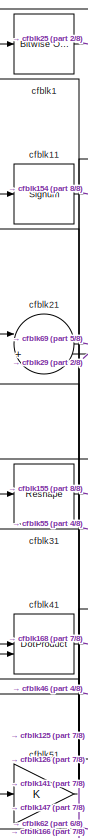
[diagram: root canvas - part 1/8, top left region]
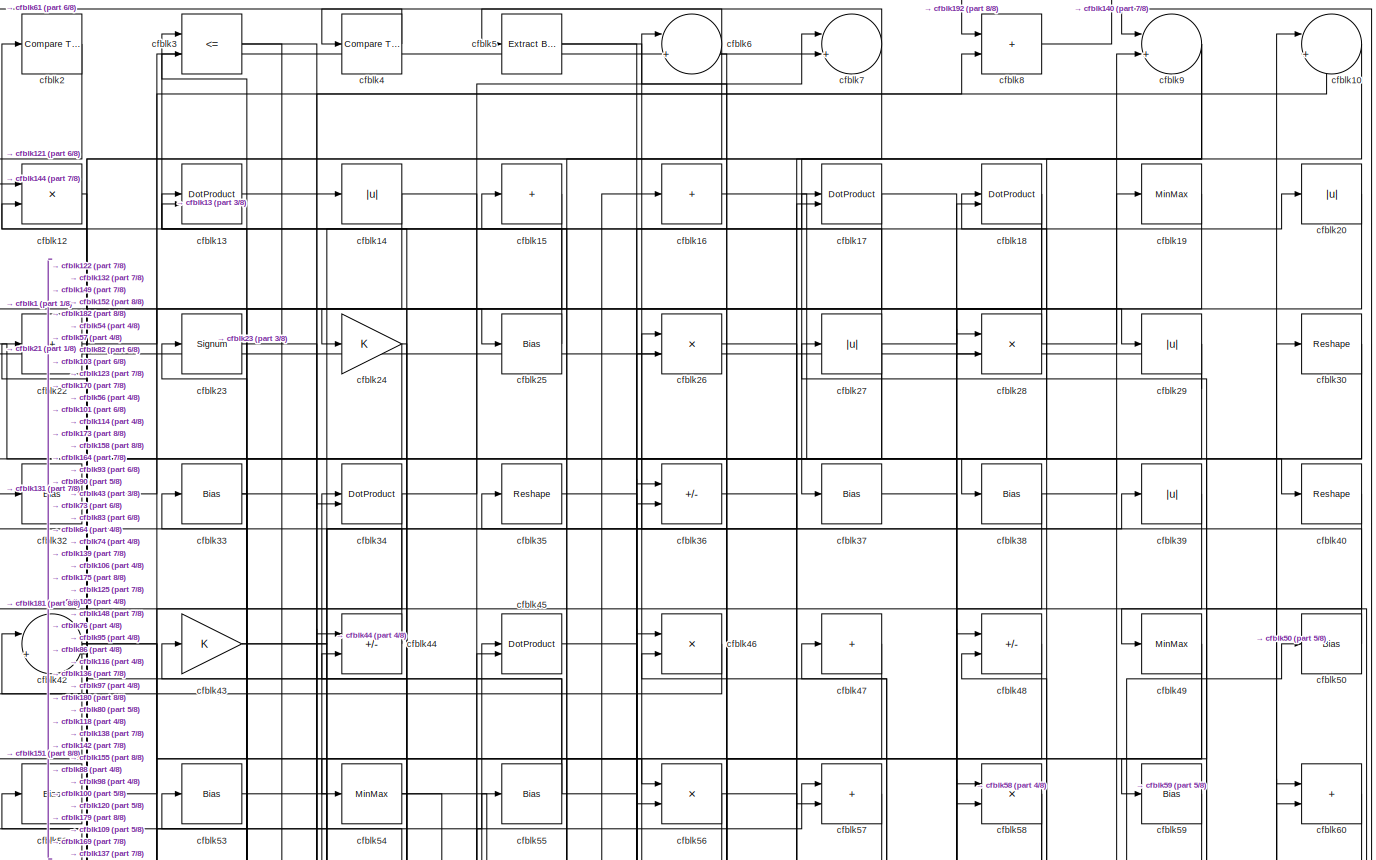
[diagram: root canvas - part 2/8, full width, top band]
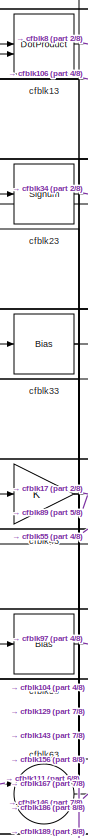
[diagram: root canvas - part 3/8, top left region]
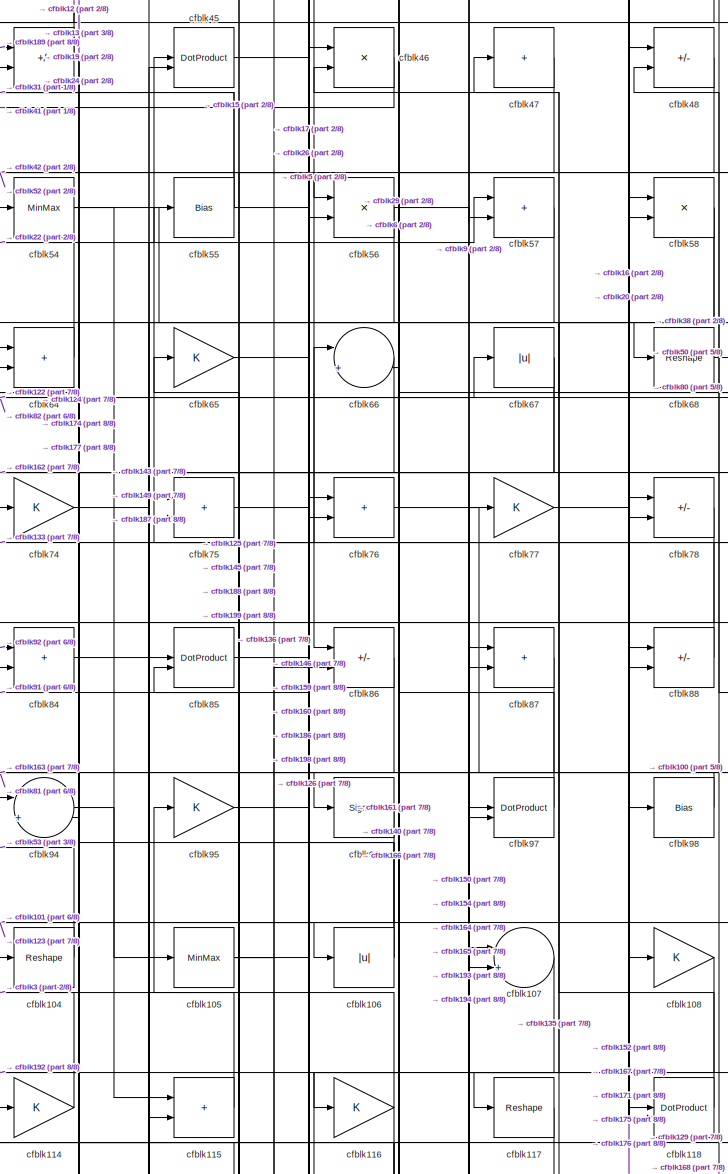
[diagram: root canvas - part 4/8, central region]
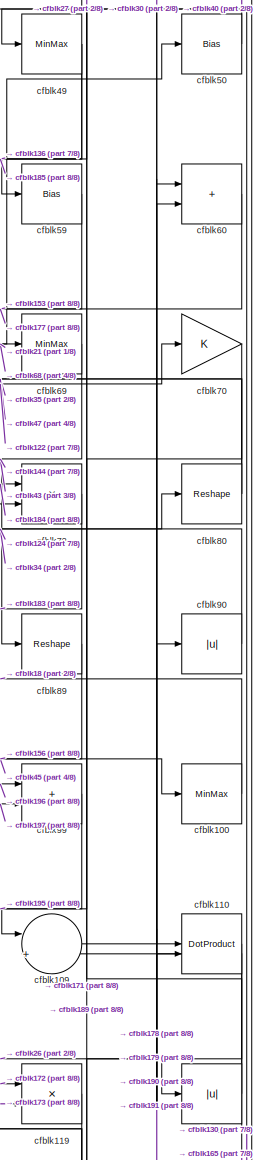
[diagram: root canvas - part 5/8, middle right region]
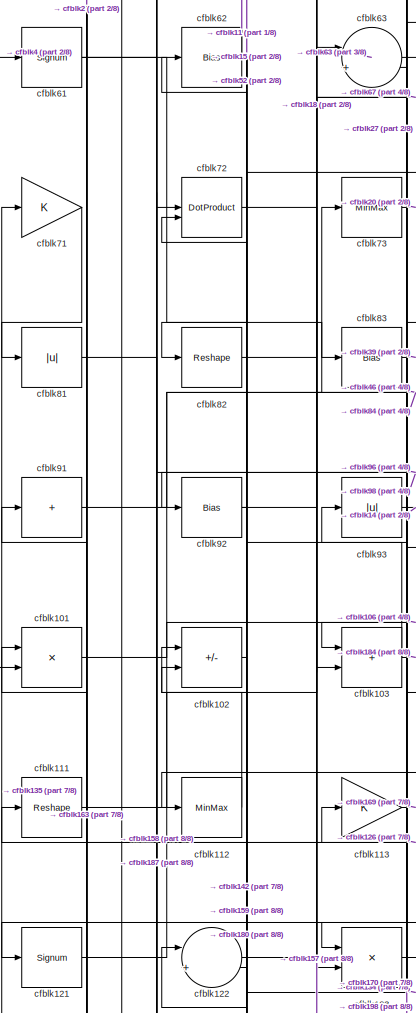
[diagram: root canvas - part 6/8, middle left region]
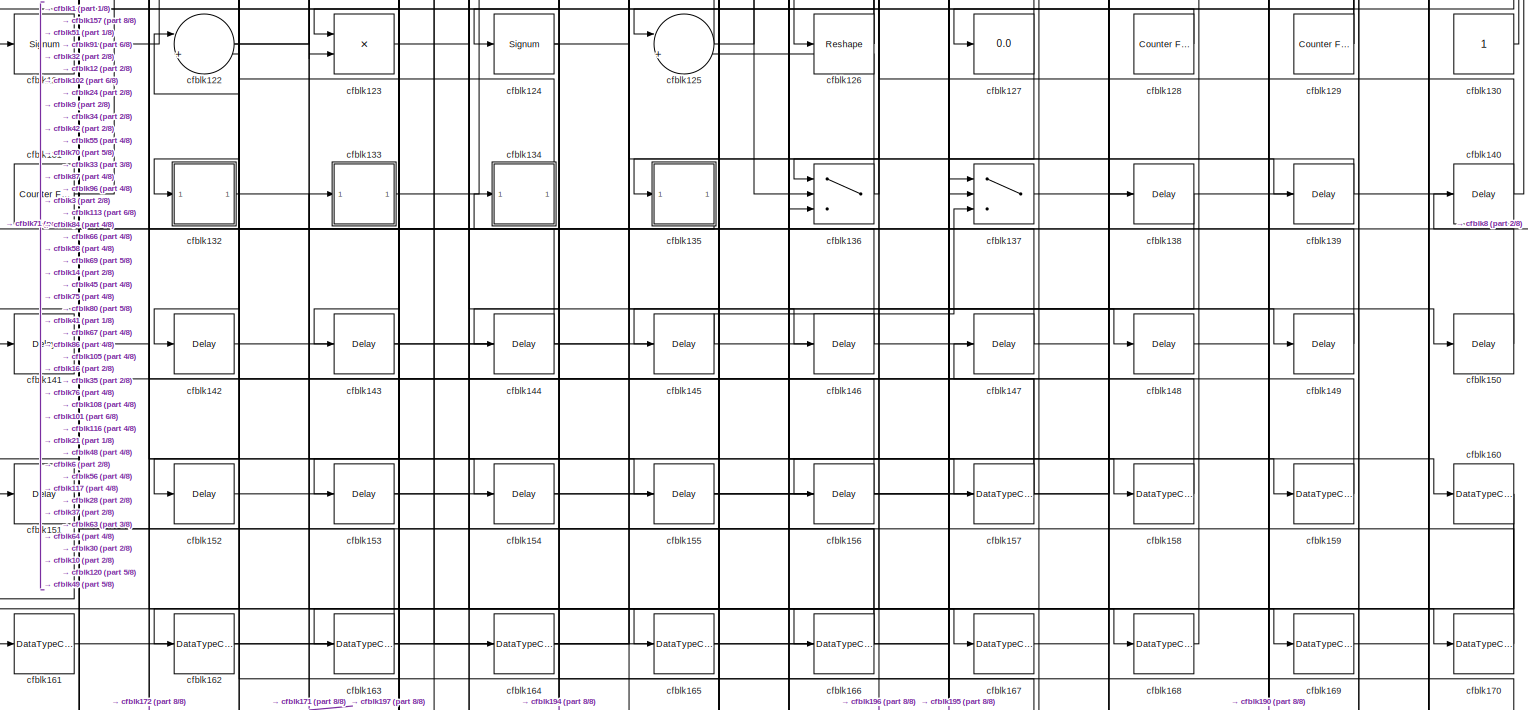
[diagram: root canvas - part 7/8, full width, bottom band]
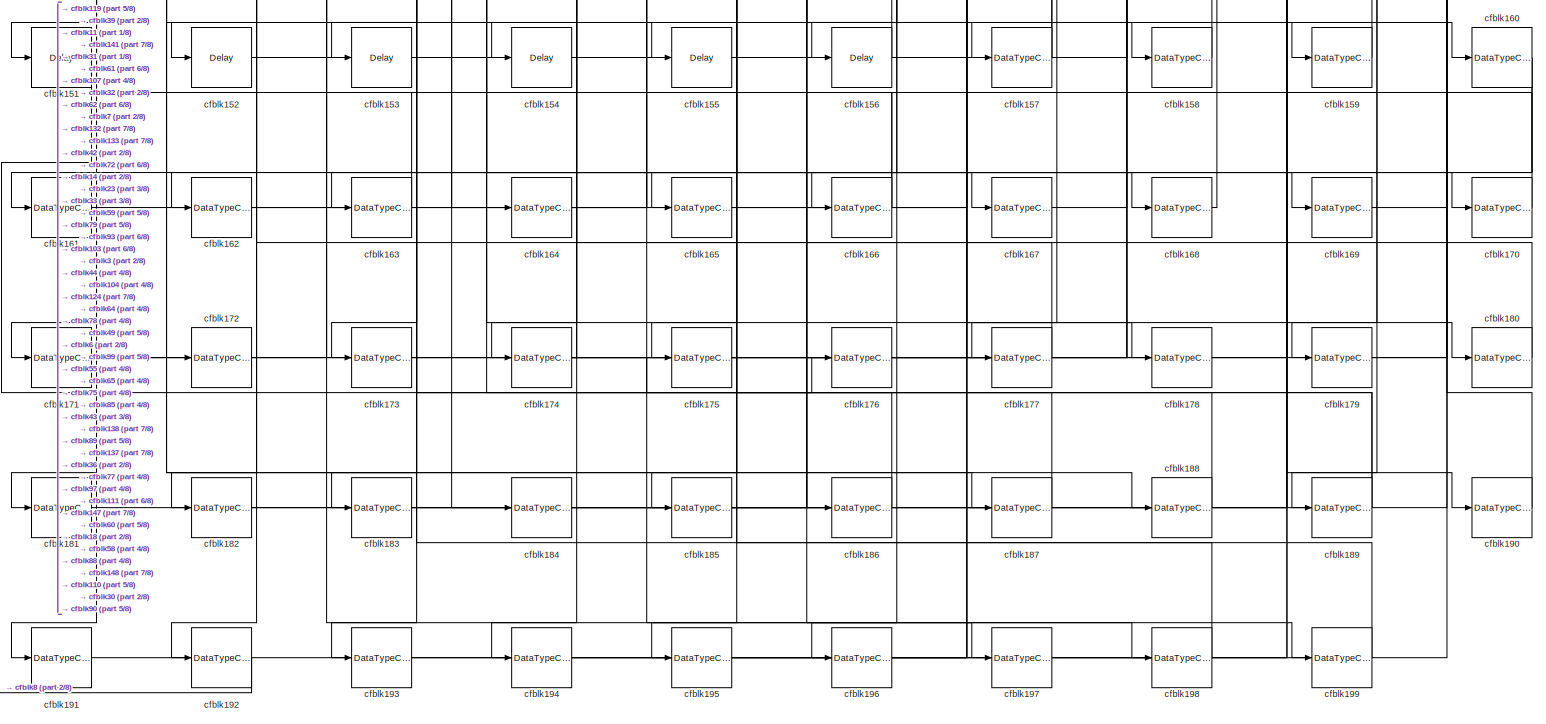
[diagram: root canvas - part 8/8, full width, bottom band]
MODEL slx_94d72b0391d4
KIND model
CONFIG AbsTol = auto
CONFIG EnableMultiTasking = off
CONFIG FixedStep = auto
CONFIG MaxStep = auto
CONFIG MinStep = auto
CONFIG RelTol = 1e-3
CONFIG SampleTimeConstraint = Unconstrained
CONFIG SolverName = VariableStepAuto
CONFIG StartTime = 0.0
CONFIG StopTime = 10.0
BLOCK [Reference] cfblk1  REF=simulink/Logic and Bit
Operations/Bitwise
Operator
  LibrarySourceBlock = hdlsllib/Logic and Bit\nOperations/Bitwise\nOperator
  SourceBlock = simulink/Logic and Bit\nOperations/Bitwise\nOperator
  SourceType = Bitwise Operator
BLOCK [Sum] cfblk10
  Inputs = |++
BLOCK [MinMax] cfblk100
BLOCK [Product] cfblk101
  Inputs = */
  RndMeth = Zero
  SaturateOnIntegerOverflow = on
BLOCK [Sum] cfblk102
  IconShape = rectangular
  Inputs = +-
BLOCK [Sum] cfblk103
  IconShape = rectangular
BLOCK [Reshape] cfblk104
BLOCK [MinMax] cfblk105
BLOCK [Abs] cfblk106
  SaturateOnIntegerOverflow = off
BLOCK [Sum] cfblk107
  Inputs = |++
BLOCK [Gain] cfblk108
BLOCK [Sum] cfblk109
  Inputs = |++
BLOCK [Signum] cfblk11
BLOCK [DotProduct] cfblk110
  OutDataTypeStr = Inherit: Inherit via internal rule
BLOCK [Reshape] cfblk111
BLOCK [MinMax] cfblk112
BLOCK [Gain] cfblk113
BLOCK [Gain] cfblk114
BLOCK [Sum] cfblk115
  IconShape = rectangular
BLOCK [Gain] cfblk116
BLOCK [Reshape] cfblk117
BLOCK [DotProduct] cfblk118
  OutDataTypeStr = Inherit: Inherit via internal rule
BLOCK [Product] cfblk119
  Inputs = */
  RndMeth = Zero
  SaturateOnIntegerOverflow = on
BLOCK [Product] cfblk12
  Inputs = */
  RndMeth = Zero
  SaturateOnIntegerOverflow = on
BLOCK [Abs] cfblk120
  SaturateOnIntegerOverflow = off
BLOCK [Signum] cfblk121
BLOCK [Sum] cfblk122
  Inputs = |++
BLOCK [Product] cfblk123
  Inputs = */
  RndMeth = Zero
  SaturateOnIntegerOverflow = on
BLOCK [Signum] cfblk124
BLOCK [Sum] cfblk125
  Inputs = |++
BLOCK [Reshape] cfblk126
BLOCK [Display] cfblk127
  Decimation = 1
BLOCK [Reference] cfblk128  REF=hdlsllib/Sources/Counter
Free-Running
  SourceBlock = hdlsllib/Sources/Counter\nFree-Running
  SourceType = Counter Free-Running
BLOCK [Reference] cfblk129  REF=hdlsllib/Sources/Counter
Free-Running
  SourceBlock = hdlsllib/Sources/Counter\nFree-Running
  SourceType = Counter Free-Running
BLOCK [DotProduct] cfblk13
  OutDataTypeStr = Inherit: Inherit via internal rule
BLOCK [Constant] cfblk130
  SampleTime = -1
BLOCK [Reference] cfblk131  REF=hdlsllib/Sources/Counter
Free-Running
  SourceBlock = hdlsllib/Sources/Counter\nFree-Running
  SourceType = Counter Free-Running
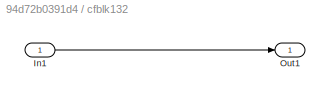
BLOCK [SubSystem] cfblk132
  LibrarySourceBlock = hdlsllib/Ports &\nSubsystems/Subsystem
BLOCK [Inport] cfblk132/In1
BLOCK [Outport] cfblk132/Out1
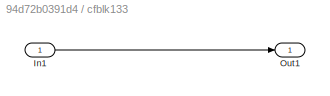
BLOCK [SubSystem] cfblk133
  LibrarySourceBlock = hdlsllib/Ports &\nSubsystems/Subsystem
BLOCK [Inport] cfblk133/In1
BLOCK [Outport] cfblk133/Out1
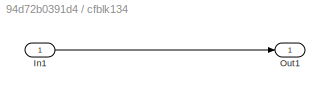
BLOCK [SubSystem] cfblk134
  LibrarySourceBlock = hdlsllib/Ports &\nSubsystems/Subsystem
BLOCK [Inport] cfblk134/In1
BLOCK [Outport] cfblk134/Out1
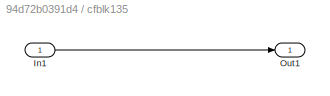
BLOCK [SubSystem] cfblk135
  LibrarySourceBlock = hdlsllib/Ports &\nSubsystems/Subsystem
BLOCK [Inport] cfblk135/In1
BLOCK [Outport] cfblk135/Out1
BLOCK [Switch] cfblk136
  InputSameDT = off
  SaturateOnIntegerOverflow = off
BLOCK [Switch] cfblk137
  InputSameDT = off
  SaturateOnIntegerOverflow = off
BLOCK [Delay] cfblk138
  InputPortMap = u0
  SampleTime = 1
BLOCK [Delay] cfblk139
  InputPortMap = u0
  SampleTime = 1
BLOCK [Abs] cfblk14
  SaturateOnIntegerOverflow = off
BLOCK [Delay] cfblk140
  InputPortMap = u0
  SampleTime = 1
BLOCK [Delay] cfblk141
  InputPortMap = u0
  SampleTime = 1
BLOCK [Delay] cfblk142
  InputPortMap = u0
  SampleTime = 1
BLOCK [Delay] cfblk143
  InputPortMap = u0
  SampleTime = 1
BLOCK [Delay] cfblk144
  InputPortMap = u0
  SampleTime = 1
BLOCK [Delay] cfblk145
  InputPortMap = u0
  SampleTime = 1
BLOCK [Delay] cfblk146
  InputPortMap = u0
  SampleTime = 1
BLOCK [Delay] cfblk147
  InputPortMap = u0
  SampleTime = 1
BLOCK [Delay] cfblk148
  InputPortMap = u0
  SampleTime = 1
BLOCK [Delay] cfblk149
  InputPortMap = u0
  SampleTime = 1
BLOCK [Sum] cfblk15
  IconShape = rectangular
  Inputs = +
BLOCK [Delay] cfblk150
  InputPortMap = u0
  SampleTime = 1
BLOCK [Delay] cfblk151
  InputPortMap = u0
  SampleTime = 1
BLOCK [Delay] cfblk152
  InputPortMap = u0
  SampleTime = 1
BLOCK [Delay] cfblk153
  InputPortMap = u0
  SampleTime = 1
BLOCK [Delay] cfblk154
  InputPortMap = u0
  SampleTime = 1
BLOCK [Delay] cfblk155
  InputPortMap = u0
  SampleTime = 1
BLOCK [Delay] cfblk156
  InputPortMap = u0
  SampleTime = 1
BLOCK [DataTypeConversion] cfblk157
  RndMeth = Floor
  SaturateOnIntegerOverflow = off
BLOCK [DataTypeConversion] cfblk158
  OutDataTypeStr = uint8
  RndMeth = Floor
  SaturateOnIntegerOverflow = off
BLOCK [DataTypeConversion] cfblk159
  OutDataTypeStr = uint8
  RndMeth = Floor
  SaturateOnIntegerOverflow = off
BLOCK [Sum] cfblk16
  IconShape = rectangular
  Inputs = +
BLOCK [DataTypeConversion] cfblk160
  RndMeth = Floor
  SaturateOnIntegerOverflow = off
BLOCK [DataTypeConversion] cfblk161
  OutDataTypeStr = uint8
  RndMeth = Floor
  SaturateOnIntegerOverflow = off
BLOCK [DataTypeConversion] cfblk162
  OutDataTypeStr = uint8
  RndMeth = Floor
  SaturateOnIntegerOverflow = off
BLOCK [DataTypeConversion] cfblk163
  OutDataTypeStr = uint8
  RndMeth = Floor
  SaturateOnIntegerOverflow = off
BLOCK [DataTypeConversion] cfblk164
  OutDataTypeStr = uint8
  RndMeth = Floor
  SaturateOnIntegerOverflow = off
BLOCK [DataTypeConversion] cfblk165
  OutDataTypeStr = uint8
  RndMeth = Floor
  SaturateOnIntegerOverflow = off
BLOCK [DataTypeConversion] cfblk166
  RndMeth = Floor
  SaturateOnIntegerOverflow = off
BLOCK [DataTypeConversion] cfblk167
  OutDataTypeStr = uint8
  RndMeth = Floor
  SaturateOnIntegerOverflow = off
BLOCK [DataTypeConversion] cfblk168
  OutDataTypeStr = uint8
  RndMeth = Floor
  SaturateOnIntegerOverflow = off
BLOCK [DataTypeConversion] cfblk169
  OutDataTypeStr = uint8
  RndMeth = Floor
  SaturateOnIntegerOverflow = off
BLOCK [DotProduct] cfblk17
  OutDataTypeStr = Inherit: Inherit via internal rule
BLOCK [DataTypeConversion] cfblk170
  OutDataTypeStr = uint8
  RndMeth = Floor
  SaturateOnIntegerOverflow = off
BLOCK [DataTypeConversion] cfblk171
  RndMeth = Floor
  SaturateOnIntegerOverflow = off
BLOCK [DataTypeConversion] cfblk172
  OutDataTypeStr = uint8
  RndMeth = Floor
  SaturateOnIntegerOverflow = off
BLOCK [DataTypeConversion] cfblk173
  OutDataTypeStr = uint8
  RndMeth = Floor
  SaturateOnIntegerOverflow = off
BLOCK [DataTypeConversion] cfblk174
  RndMeth = Floor
  SaturateOnIntegerOverflow = off
BLOCK [DataTypeConversion] cfblk175
  OutDataTypeStr = uint8
  RndMeth = Floor
  SaturateOnIntegerOverflow = off
BLOCK [DataTypeConversion] cfblk176
  OutDataTypeStr = uint8
  RndMeth = Floor
  SaturateOnIntegerOverflow = off
BLOCK [DataTypeConversion] cfblk177
  OutDataTypeStr = uint8
  RndMeth = Floor
  SaturateOnIntegerOverflow = off
BLOCK [DataTypeConversion] cfblk178
  OutDataTypeStr = uint8
  RndMeth = Floor
  SaturateOnIntegerOverflow = off
BLOCK [DataTypeConversion] cfblk179
  OutDataTypeStr = uint8
  RndMeth = Floor
  SaturateOnIntegerOverflow = off
BLOCK [DotProduct] cfblk18
  OutDataTypeStr = Inherit: Inherit via internal rule
BLOCK [DataTypeConversion] cfblk180
  OutDataTypeStr = uint8
  RndMeth = Floor
  SaturateOnIntegerOverflow = off
BLOCK [DataTypeConversion] cfblk181
  OutDataTypeStr = uint8
  RndMeth = Floor
  SaturateOnIntegerOverflow = off
BLOCK [DataTypeConversion] cfblk182
  OutDataTypeStr = uint8
  RndMeth = Floor
  SaturateOnIntegerOverflow = off
BLOCK [DataTypeConversion] cfblk183
  OutDataTypeStr = uint8
  RndMeth = Floor
  SaturateOnIntegerOverflow = off
BLOCK [DataTypeConversion] cfblk184
  OutDataTypeStr = uint8
  RndMeth = Floor
  SaturateOnIntegerOverflow = off
BLOCK [DataTypeConversion] cfblk185
  OutDataTypeStr = uint8
  RndMeth = Floor
  SaturateOnIntegerOverflow = off
BLOCK [DataTypeConversion] cfblk186
  OutDataTypeStr = uint8
  RndMeth = Floor
  SaturateOnIntegerOverflow = off
BLOCK [DataTypeConversion] cfblk187
  OutDataTypeStr = uint8
  RndMeth = Floor
  SaturateOnIntegerOverflow = off
BLOCK [DataTypeConversion] cfblk188
  OutDataTypeStr = uint8
  RndMeth = Floor
  SaturateOnIntegerOverflow = off
BLOCK [DataTypeConversion] cfblk189
  RndMeth = Floor
  SaturateOnIntegerOverflow = off
BLOCK [MinMax] cfblk19
BLOCK [DataTypeConversion] cfblk190
  OutDataTypeStr = uint8
  RndMeth = Floor
  SaturateOnIntegerOverflow = off
BLOCK [DataTypeConversion] cfblk191
  OutDataTypeStr = uint8
  RndMeth = Floor
  SaturateOnIntegerOverflow = off
BLOCK [DataTypeConversion] cfblk192
  OutDataTypeStr = uint8
  RndMeth = Floor
  SaturateOnIntegerOverflow = off
BLOCK [DataTypeConversion] cfblk193
  OutDataTypeStr = uint8
  RndMeth = Floor
  SaturateOnIntegerOverflow = off
BLOCK [DataTypeConversion] cfblk194
  OutDataTypeStr = uint8
  RndMeth = Floor
  SaturateOnIntegerOverflow = off
BLOCK [DataTypeConversion] cfblk195
  OutDataTypeStr = uint8
  RndMeth = Floor
  SaturateOnIntegerOverflow = off
BLOCK [DataTypeConversion] cfblk196
  OutDataTypeStr = uint8
  RndMeth = Floor
  SaturateOnIntegerOverflow = off
BLOCK [DataTypeConversion] cfblk197
  OutDataTypeStr = uint8
  RndMeth = Floor
  SaturateOnIntegerOverflow = off
BLOCK [DataTypeConversion] cfblk198
  OutDataTypeStr = uint8
  RndMeth = Floor
  SaturateOnIntegerOverflow = off
BLOCK [DataTypeConversion] cfblk199
  OutDataTypeStr = uint8
  RndMeth = Floor
  SaturateOnIntegerOverflow = off
BLOCK [Reference] cfblk2  REF=hdlsllib/Logic and Bit
Operations/Compare
To Zero
  SourceBlock = hdlsllib/Logic and Bit\nOperations/Compare\nTo Zero
  SourceType = Compare To Zero
BLOCK [Abs] cfblk20
  SaturateOnIntegerOverflow = off
BLOCK [Sum] cfblk21
  Inputs = |++
BLOCK [Sum] cfblk22
  IconShape = rectangular
  Inputs = +
BLOCK [Signum] cfblk23
BLOCK [Gain] cfblk24
BLOCK [Bias] cfblk25
  Bias = 0.0
  SaturateOnIntegerOverflow = off
BLOCK [Product] cfblk26
  Inputs = */
  RndMeth = Zero
  SaturateOnIntegerOverflow = on
BLOCK [Abs] cfblk27
  SaturateOnIntegerOverflow = off
BLOCK [Product] cfblk28
  Inputs = */
  RndMeth = Zero
  SaturateOnIntegerOverflow = on
BLOCK [Abs] cfblk29
  SaturateOnIntegerOverflow = off
BLOCK [RelationalOperator] cfblk3
  InputSameDT = off
  Operator = <=
  OutDataTypeStr = boolean
BLOCK [Reshape] cfblk30
BLOCK [Reshape] cfblk31
BLOCK [Bias] cfblk32
  Bias = 0.0
  SaturateOnIntegerOverflow = off
BLOCK [Bias] cfblk33
  Bias = 0.0
  SaturateOnIntegerOverflow = off
BLOCK [DotProduct] cfblk34
  OutDataTypeStr = Inherit: Inherit via internal rule
BLOCK [Reshape] cfblk35
BLOCK [Sum] cfblk36
  IconShape = rectangular
  Inputs = +-
BLOCK [Bias] cfblk37
  Bias = 0.0
  SaturateOnIntegerOverflow = off
BLOCK [Bias] cfblk38
  Bias = 0.0
  SaturateOnIntegerOverflow = off
BLOCK [Abs] cfblk39
  SaturateOnIntegerOverflow = off
BLOCK [Reference] cfblk4  REF=hdlsllib/Logic and Bit
Operations/Compare
To Zero
  SourceBlock = hdlsllib/Logic and Bit\nOperations/Compare\nTo Zero
  SourceType = Compare To Zero
BLOCK [Reshape] cfblk40
BLOCK [DotProduct] cfblk41
  OutDataTypeStr = Inherit: Inherit via internal rule
BLOCK [Sum] cfblk42
  Inputs = |++
BLOCK [Gain] cfblk43
BLOCK [Sum] cfblk44
  IconShape = rectangular
  Inputs = +-
BLOCK [DotProduct] cfblk45
  OutDataTypeStr = Inherit: Inherit via internal rule
BLOCK [Product] cfblk46
  Inputs = */
  RndMeth = Zero
  SaturateOnIntegerOverflow = on
BLOCK [Sum] cfblk47
  IconShape = rectangular
  Inputs = +
BLOCK [Sum] cfblk48
  IconShape = rectangular
  Inputs = +-
BLOCK [MinMax] cfblk49
BLOCK [Reference] cfblk5  REF=simulink/Logic and Bit
Operations/Extract Bits
  LibrarySourceBlock = hdlsllib/Logic and Bit\nOperations/Extract Bits
  SourceBlock = simulink/Logic and Bit\nOperations/Extract Bits
  SourceType = Extract Bits
BLOCK [Bias] cfblk50
  Bias = 0.0
  SaturateOnIntegerOverflow = off
BLOCK [Gain] cfblk51
BLOCK [Bias] cfblk52
  Bias = 0.0
  SaturateOnIntegerOverflow = off
BLOCK [Bias] cfblk53
  Bias = 0.0
  SaturateOnIntegerOverflow = off
BLOCK [MinMax] cfblk54
BLOCK [Bias] cfblk55
  Bias = 0.0
  SaturateOnIntegerOverflow = off
BLOCK [Product] cfblk56
  Inputs = */
  RndMeth = Zero
  SaturateOnIntegerOverflow = on
BLOCK [Sum] cfblk57
  IconShape = rectangular
BLOCK [Product] cfblk58
  Inputs = */
  RndMeth = Zero
  SaturateOnIntegerOverflow = on
BLOCK [Bias] cfblk59
  Bias = 0.0
  SaturateOnIntegerOverflow = off
BLOCK [Sum] cfblk6
  Inputs = |++
BLOCK [Sum] cfblk60
  IconShape = rectangular
BLOCK [Signum] cfblk61
BLOCK [Bias] cfblk62
  Bias = 0.0
  SaturateOnIntegerOverflow = off
BLOCK [Sum] cfblk63
  Inputs = |++
BLOCK [Sum] cfblk64
  IconShape = rectangular
BLOCK [Gain] cfblk65
BLOCK [Sum] cfblk66
  Inputs = |++
BLOCK [Abs] cfblk67
  SaturateOnIntegerOverflow = off
BLOCK [Reshape] cfblk68
BLOCK [MinMax] cfblk69
BLOCK [Sum] cfblk7
  Inputs = |++
BLOCK [Gain] cfblk70
BLOCK [Gain] cfblk71
BLOCK [DotProduct] cfblk72
  OutDataTypeStr = Inherit: Inherit via internal rule
BLOCK [MinMax] cfblk73
BLOCK [Gain] cfblk74
BLOCK [Sum] cfblk75
  IconShape = rectangular
BLOCK [Sum] cfblk76
  IconShape = rectangular
BLOCK [Gain] cfblk77
BLOCK [Sum] cfblk78
  IconShape = rectangular
  Inputs = +-
BLOCK [Product] cfblk79
  Inputs = */
  RndMeth = Zero
  SaturateOnIntegerOverflow = on
BLOCK [Sum] cfblk8
  IconShape = rectangular
BLOCK [Reshape] cfblk80
BLOCK [Abs] cfblk81
  SaturateOnIntegerOverflow = off
BLOCK [Reshape] cfblk82
BLOCK [Bias] cfblk83
  Bias = 0.0
  SaturateOnIntegerOverflow = off
BLOCK [Sum] cfblk84
  IconShape = rectangular
BLOCK [DotProduct] cfblk85
  OutDataTypeStr = Inherit: Inherit via internal rule
BLOCK [Sum] cfblk86
  IconShape = rectangular
  Inputs = +-
BLOCK [Sum] cfblk87
  IconShape = rectangular
BLOCK [Sum] cfblk88
  IconShape = rectangular
  Inputs = +-
BLOCK [Reshape] cfblk89
BLOCK [Sum] cfblk9
  Inputs = |++
BLOCK [Abs] cfblk90
  SaturateOnIntegerOverflow = off
BLOCK [Sum] cfblk91
  IconShape = rectangular
  Inputs = +
BLOCK [Bias] cfblk92
  Bias = 0.0
  SaturateOnIntegerOverflow = off
BLOCK [Abs] cfblk93
  SaturateOnIntegerOverflow = off
BLOCK [Sum] cfblk94
  Inputs = |++
BLOCK [Gain] cfblk95
BLOCK [Signum] cfblk96
BLOCK [DotProduct] cfblk97
  OutDataTypeStr = Inherit: Inherit via internal rule
BLOCK [Bias] cfblk98
  Bias = 0.0
  SaturateOnIntegerOverflow = off
BLOCK [Sum] cfblk99
  IconShape = rectangular
LINE cfblk100:1 -> cfblk18:1
LINE cfblk101:1 -> cfblk106:1
LINE cfblk102:1 -> cfblk142:1
NET cfblk103:1 -> cfblk184:1, cfblk52:1
LINE cfblk104:1 -> cfblk53:1
NET cfblk105:1 -> cfblk136:2, cfblk26:2, cfblk86:2
NET cfblk106:1 -> cfblk13:1, cfblk15:1
LINE cfblk107:1 -> cfblk192:1
LINE cfblk108:1 -> cfblk126:1
LINE cfblk109:1 -> cfblk30:1
LINE cfblk10:1 -> cfblk38:1
LINE cfblk110:1 -> cfblk189:1
LINE cfblk111:1 -> cfblk63:1
LINE cfblk112:1 -> cfblk102:1
LINE cfblk113:1 -> cfblk169:1
LINE cfblk114:1 -> cfblk3:1
LINE cfblk115:1 -> cfblk95:1
NET cfblk116:1 -> cfblk161:1, cfblk44:2
LINE cfblk117:1 -> cfblk135:1
LINE cfblk118:1 -> cfblk46:2
LINE cfblk119:1 -> cfblk171:1
LINE cfblk11:1 -> cfblk154:1
NET cfblk120:1 -> cfblk109:2, cfblk165:1, cfblk27:1
LINE cfblk121:1 -> cfblk73:1
NET cfblk122:1 -> cfblk55:1, cfblk70:1
LINE cfblk123:1 -> cfblk84:2
NET cfblk124:1 -> cfblk194:1, cfblk80:1
NET cfblk125:1 -> cfblk16:1, cfblk41:1
NET cfblk126:1 -> cfblk101:1, cfblk21:1
LINE cfblk128:1 -> cfblk127:1
NET cfblk129:1 -> cfblk63:2, cfblk64:1
LINE cfblk12:1 -> cfblk42:2
LINE cfblk130:1 -> cfblk49:1
LINE cfblk131:1 -> cfblk32:1
LINE cfblk132/In1:1 -> cfblk132/Out1:1
LINE cfblk132:1 -> cfblk197:1
LINE cfblk133/In1:1 -> cfblk133/Out1:1
LINE cfblk133:1 -> cfblk66:1
LINE cfblk134/In1:1 -> cfblk134/Out1:1
LINE cfblk134:1 -> cfblk102:2
LINE cfblk135/In1:1 -> cfblk135/Out1:1
LINE cfblk135:1 -> cfblk71:1
NET cfblk136:1 -> cfblk125:2, cfblk6:2
LINE cfblk137:1 -> cfblk9:1
LINE cfblk138:1 -> cfblk196:1
LINE cfblk139:1 -> cfblk137:2
LINE cfblk13:1 -> cfblk8:2
LINE cfblk140:1 -> cfblk66:2
LINE cfblk141:1 -> cfblk172:1
LINE cfblk142:1 -> cfblk28:1
LINE cfblk143:1 -> cfblk45:2
LINE cfblk144:1 -> cfblk12:1
LINE cfblk145:1 -> cfblk137:3
LINE cfblk146:1 -> cfblk76:1
LINE cfblk147:1 -> cfblk1:1
LINE cfblk148:1 -> cfblk190:1
LINE cfblk149:1 -> cfblk42:1
NET cfblk14:1 -> cfblk139:1, cfblk173:1
LINE cfblk150:1 -> cfblk122:1
LINE cfblk151:1 -> cfblk176:1
LINE cfblk152:1 -> cfblk88:1
LINE cfblk153:1 -> cfblk178:1
LINE cfblk154:1 -> cfblk97:1
LINE cfblk155:1 -> cfblk18:2
LINE cfblk156:1 -> cfblk43:1
NET cfblk157:1 -> cfblk111:1, cfblk147:1
LINE cfblk158:1 -> cfblk72:1
LINE cfblk159:1 -> cfblk72:2
LINE cfblk15:1 -> cfblk82:1
NET cfblk160:1 -> cfblk191:1, cfblk193:1
LINE cfblk161:1 -> cfblk75:1
LINE cfblk162:1 -> cfblk75:2
LINE cfblk163:1 -> cfblk91:1
LINE cfblk164:1 -> cfblk87:1
LINE cfblk165:1 -> cfblk87:2
NET cfblk166:1 -> cfblk134:1, cfblk51:1
LINE cfblk167:1 -> cfblk48:1
LINE cfblk168:1 -> cfblk48:2
LINE cfblk169:1 -> cfblk10:1
LINE cfblk16:1 -> cfblk98:1
LINE cfblk170:1 -> cfblk113:1
NET cfblk171:1 -> cfblk133:1, cfblk188:1, cfblk58:1
LINE cfblk172:1 -> cfblk119:1
LINE cfblk173:1 -> cfblk119:2
NET cfblk174:1 -> cfblk199:1, cfblk64:2, cfblk77:1
LINE cfblk175:1 -> cfblk78:1
LINE cfblk176:1 -> cfblk78:2
LINE cfblk177:1 -> cfblk104:1
LINE cfblk178:1 -> cfblk60:1
LINE cfblk179:1 -> cfblk60:2
NET cfblk17:1 -> cfblk118:2, cfblk76:2
LINE cfblk180:1 -> cfblk62:1
LINE cfblk181:1 -> cfblk36:1
LINE cfblk182:1 -> cfblk36:2
LINE cfblk183:1 -> cfblk90:1
LINE cfblk184:1 -> cfblk79:1
LINE cfblk185:1 -> cfblk79:2
LINE cfblk186:1 -> cfblk23:1
LINE cfblk187:1 -> cfblk85:1
LINE cfblk188:1 -> cfblk85:2
NET cfblk189:1 -> cfblk33:1, cfblk44:1
NET cfblk18:1 -> cfblk103:2, cfblk28:2
LINE cfblk190:1 -> cfblk110:1
LINE cfblk191:1 -> cfblk110:2
LINE cfblk192:1 -> cfblk8:1
LINE cfblk193:1 -> cfblk107:1
LINE cfblk194:1 -> cfblk107:2
LINE cfblk195:1 -> cfblk137:1
LINE cfblk196:1 -> cfblk99:1
LINE cfblk197:1 -> cfblk99:2
LINE cfblk198:1 -> cfblk93:1
LINE cfblk199:1 -> cfblk65:1
LINE cfblk19:1 -> cfblk74:1
LINE cfblk1:1 -> cfblk25:1
LINE cfblk20:1 -> cfblk88:2
LINE cfblk21:1 -> cfblk69:1
LINE cfblk22:1 -> cfblk10:2
LINE cfblk23:1 -> cfblk34:2
NET cfblk24:1 -> cfblk132:1, cfblk54:1
LINE cfblk25:1 -> cfblk2:1
LINE cfblk26:1 -> cfblk120:1
NET cfblk27:1 -> cfblk101:2, cfblk103:1, cfblk29:1, cfblk3:2
NET cfblk28:1 -> cfblk24:1, cfblk9:2
NET cfblk29:1 -> cfblk116:1, cfblk21:2
LINE cfblk2:1 -> cfblk121:1
NET cfblk30:1 -> cfblk136:3, cfblk179:1
LINE cfblk31:1 -> cfblk155:1
NET cfblk32:1 -> cfblk182:1, cfblk7:2
NET cfblk33:1 -> cfblk143:1, cfblk167:1
NET cfblk34:1 -> cfblk123:2, cfblk7:1
LINE cfblk35:1 -> cfblk148:1
LINE cfblk36:1 -> cfblk180:1
LINE cfblk37:1 -> cfblk138:1
NET cfblk38:1 -> cfblk19:1, cfblk58:2
LINE cfblk39:1 -> cfblk181:1
NET cfblk3:1 -> cfblk158:1, cfblk164:1
LINE cfblk40:1 -> cfblk59:1
LINE cfblk41:1 -> cfblk168:1
NET cfblk42:1 -> cfblk151:1, cfblk170:1, cfblk56:2
NET cfblk43:1 -> cfblk17:2, cfblk89:1
LINE cfblk44:1 -> cfblk12:2
LINE cfblk45:1 -> cfblk100:1
LINE cfblk46:1 -> cfblk41:2
LINE cfblk47:1 -> cfblk94:2
LINE cfblk48:1 -> cfblk166:1
NET cfblk49:1 -> cfblk136:1, cfblk185:1
LINE cfblk4:1 -> cfblk61:1
LINE cfblk50:1 -> cfblk26:1
LINE cfblk51:1 -> cfblk141:1
LINE cfblk52:1 -> cfblk56:1
LINE cfblk53:1 -> cfblk97:2
NET cfblk54:1 -> cfblk105:1, cfblk68:1
NET cfblk55:1 -> cfblk13:2, cfblk159:1, cfblk31:1
NET cfblk56:1 -> cfblk150:1, cfblk94:1
LINE cfblk57:1 -> cfblk115:2
NET cfblk58:1 -> cfblk117:1, cfblk124:1
LINE cfblk59:1 -> cfblk153:1
NET cfblk5:1 -> cfblk40:1, cfblk86:1
LINE cfblk60:1 -> cfblk177:1
NET cfblk61:1 -> cfblk187:1, cfblk83:1
LINE cfblk62:1 -> cfblk11:1
LINE cfblk63:1 -> cfblk146:1
LINE cfblk64:1 -> cfblk22:1
LINE cfblk65:1 -> cfblk198:1
LINE cfblk66:1 -> cfblk162:1
NET cfblk67:1 -> cfblk114:1, cfblk145:1
LINE cfblk68:1 -> cfblk50:1
LINE cfblk69:1 -> cfblk144:1
NET cfblk6:1 -> cfblk175:1, cfblk4:1
LINE cfblk70:1 -> cfblk109:1
LINE cfblk71:1 -> cfblk81:1
LINE cfblk72:1 -> cfblk157:1
LINE cfblk73:1 -> cfblk20:1
LINE cfblk74:1 -> cfblk57:1
LINE cfblk75:1 -> cfblk160:1
LINE cfblk76:1 -> cfblk108:1
LINE cfblk77:1 -> cfblk118:1
LINE cfblk78:1 -> cfblk174:1
LINE cfblk79:1 -> cfblk183:1
NET cfblk7:1 -> cfblk152:1, cfblk5:1
NET cfblk80:1 -> cfblk35:1, cfblk47:1
LINE cfblk81:1 -> cfblk96:1
LINE cfblk82:1 -> cfblk67:1
LINE cfblk83:1 -> cfblk39:1
LINE cfblk84:1 -> cfblk149:1
LINE cfblk85:1 -> cfblk186:1
LINE cfblk86:1 -> cfblk125:1
LINE cfblk87:1 -> cfblk163:1
LINE cfblk88:1 -> cfblk45:1
LINE cfblk89:1 -> cfblk156:1
LINE cfblk8:1 -> cfblk140:1
LINE cfblk90:1 -> cfblk34:1
LINE cfblk91:1 -> cfblk46:1
NET cfblk92:1 -> cfblk112:1, cfblk84:1
LINE cfblk93:1 -> cfblk14:1
LINE cfblk94:1 -> cfblk115:1
LINE cfblk95:1 -> cfblk17:1
LINE cfblk96:1 -> cfblk123:1
LINE cfblk97:1 -> cfblk6:1
LINE cfblk98:1 -> cfblk92:1
LINE cfblk99:1 -> cfblk195:1
NET cfblk9:1 -> cfblk122:2, cfblk37:1, cfblk57:2
note: NET lines group one-source signal fan-out (src -> all destinations, sorted); 1:1 wires keep LINE
